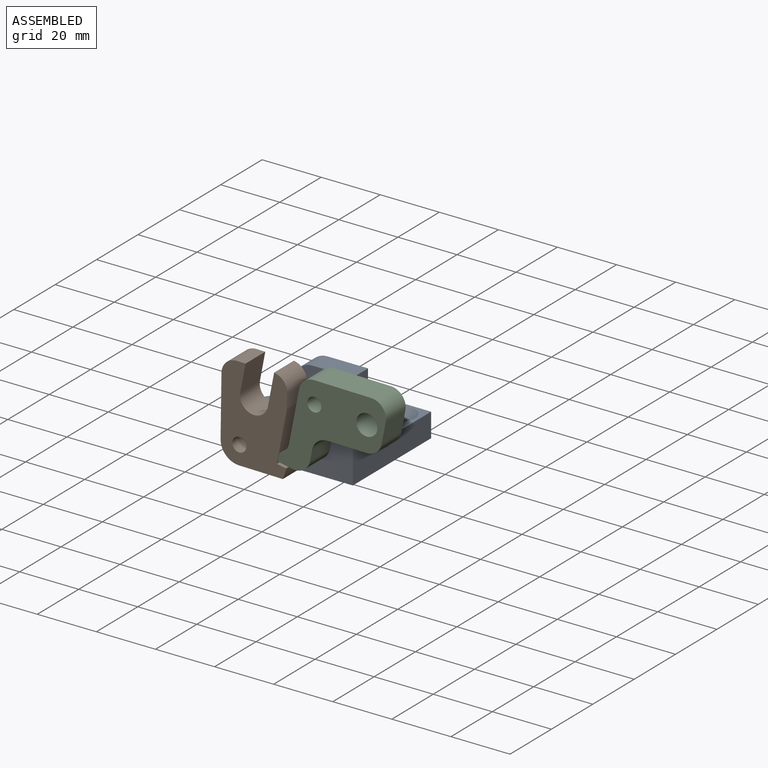
[diagram: assembled view]
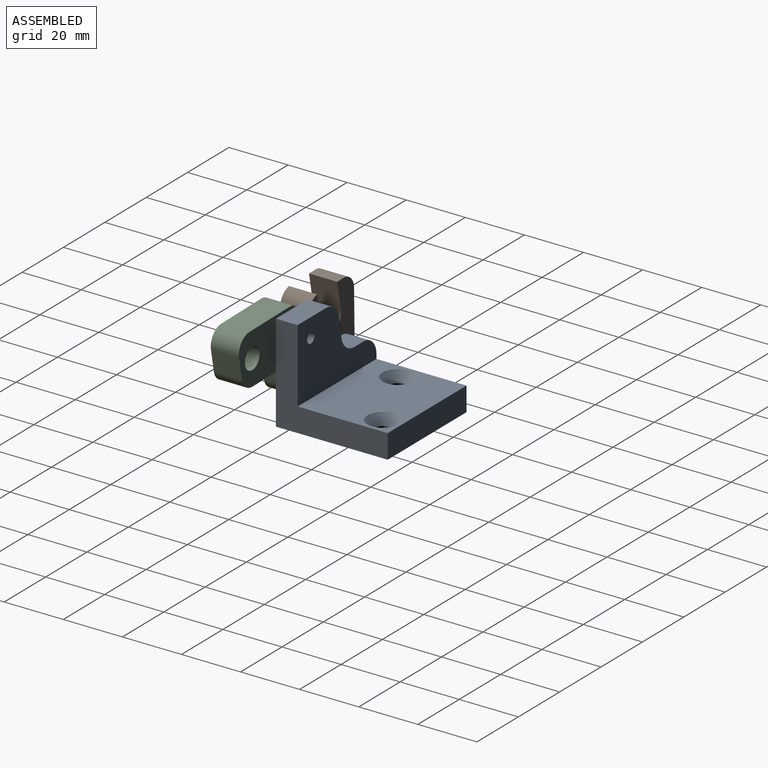
[diagram: assembled view, second angle]
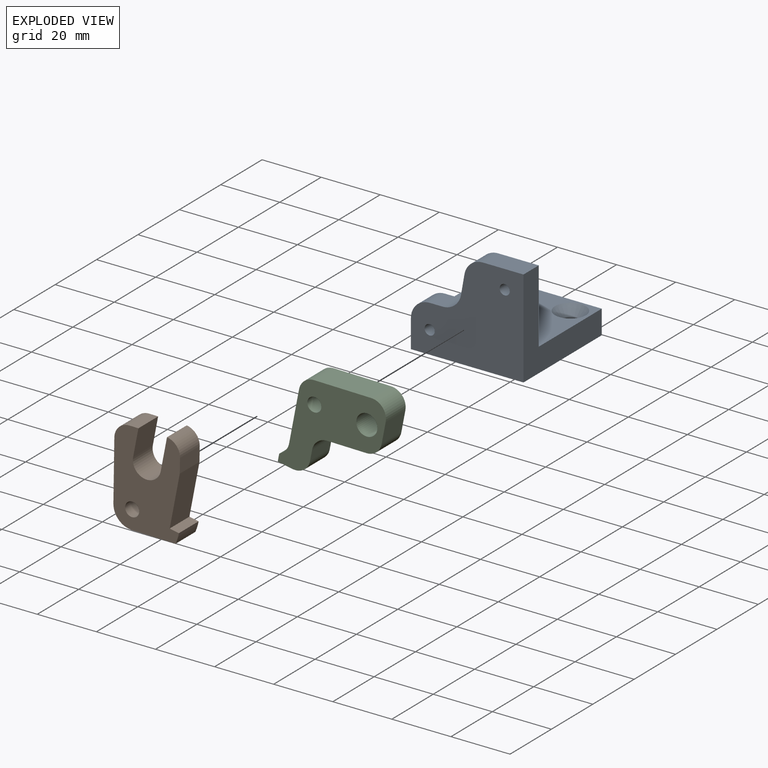
[diagram: exploded view]
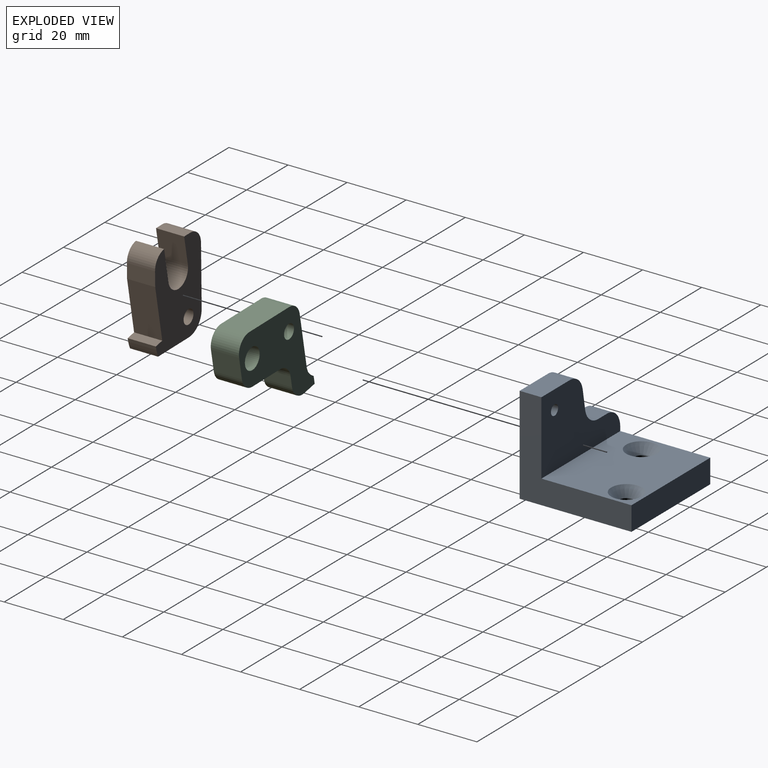
[diagram: exploded view, second angle]
ASSEMBLY  parts=3 mates=4
PART A: 20 faces, bbox 38.1x37.8x33 mm
  f0: plane 38.1x33.02mm, normal (0,-1,0), area 930mm2, adj f1,f2,f3,f4,f12,f14,f15,f16
  f1: plane 37.85x9.53mm, normal (-1,0,0), area 317.9mm2, adj f0,f4,f5,f6,f7,f17
  f2: plane 13.72x7.37mm, normal (0,0,1), area 101.1mm2, adj f0,f3,f5,f19
  f3: plane 37.85x33.02mm, normal (1,0,0), area 491mm2, adj f0,f2,f4,f5,f6,f7
  f4: plane 38.1x37.85mm, normal (0,0,-1), area 1401mm2, adj f0,f1,f3,f7,f8,f10
  f5: plane 38.1x24.89mm, normal (0,1,0), area 629.7mm2, adj f1,f2,f3,f6,f14,f15,f16,f17
  f6: plane 38.1x30.48mm, normal (0,0,1), area 990.1mm2, adj f1,f3,f5,f7,f9,f11
  f7: plane 38.1x8.13mm, normal (0,1,0), area 309.7mm2, adj f1,f3,f4,f6
  f8: cylinder r=2.55mm len=5.11mm, axis (0,0,1), area 81.2mm2, adj f4,f9
  f9: cone r=2.55mm half-angle=41deg, axis (0,0,1), area 99.3mm2, adj f6,f8
  f10: cylinder r=2.55mm len=5.11mm, axis (0,0,1), area 81.2mm2, adj f4,f11
  f11: cone r=2.55mm half-angle=41deg, axis (0,0,1), area 99.3mm2, adj f6,f10
  f12: cylinder r=1.73mm len=6.35mm, axis (0,-1,0), area 68.9mm2, adj f0,f13
  f13: cone r=0mm half-angle=59deg, axis (0,-1,0), area 10.9mm2, adj f12
  f14: cylinder r=1.73mm len=7.37mm, axis (0,-1,0), area 79.9mm2, adj f0,f5
  f15: plane 7.37x4.35mm, normal (0,0,1), area 32mm2, adj f0,f5,f17,f18
  f16: plane 7.37x6.65mm, normal (-0.98,0,0.17), area 49.7mm2, adj f0,f5,f18,f19
  f17: cylinder r=6.35mm len=7.37mm, axis (0,1,0), area 73.5mm2, adj f0,f1,f5,f15
  f18: cylinder r=6.35mm len=7.37mm, axis (0,1,0), area 65.3mm2, adj f0,f5,f15,f16
  f19: cylinder r=6.35mm len=7.37mm, axis (0,-1,0), area 65.3mm2, adj f0,f2,f5,f16
PART B: 16 faces, bbox 22.2x9.5x31.8 mm
  f0: plane 31.75x22.23mm, normal (0,1,0), area 504.1mm2, adj f2,f3,f4,f5,f6,f7,f8,f9
  f1: plane 31.75x22.23mm, normal (0,-1,0), area 504.1mm2, adj f2,f3,f4,f5,f6,f7,f8,f9
  f2: plane 14.82x9.53mm, normal (0,0,-1), area 141.1mm2, adj f0,f1,f10,f13
  f3: plane 20.32x9.53mm, normal (-1,0,0), area 193.5mm2, adj f0,f1,f10,f15
  f4: plane 9.53x4.87mm, normal (1,0,0), area 46.4mm2, adj f0,f1,f11,f14
  f5: plane 9.53x2.99mm, normal (0,0,1), area 28.5mm2, adj f0,f1,f8,f15
  f6: cylinder r=2.39mm len=9.53mm, axis (0,-1,0), area 142.9mm2, adj f0,f1
  f7: plane 10.99x9.53mm, normal (-0.98,0,0.17), area 106.3mm2, adj f0,f1,f9,f14
  f8: plane 9.53x9.33mm, normal (0.98,0,-0.17), area 90.3mm2, adj f0,f1,f5,f9
  f9: cylinder r=4.76mm len=9.53mm, axis (0,-1,0), area 142.5mm2, adj f0,f1,f7,f8
  f10: cylinder r=6.35mm len=9.53mm, axis (0,-1,0), area 95mm2, adj f0,f1,f2,f3
  f11: plane 17.73x9.53mm, normal (0.98,0,-0.17), area 171.5mm2, adj f0,f1,f4,f12
  f12: plane 9.53x3.13mm, normal (0.17,0,0.98), area 30.2mm2, adj f0,f1,f11,f13
  f13: cylinder r=16.12mm len=9.53mm, axis (0,-1,0), area 35.4mm2, adj f0,f1,f2,f12
  f14: cylinder r=5.08mm len=9.53mm, axis (0,-1,0), area 70.3mm2, adj f0,f1,f4,f7
  f15: cylinder r=5.08mm len=9.53mm, axis (0,-1,0), area 76mm2, adj f0,f1,f3,f5
PART C: 18 faces, bbox 36.3x9.5x29.3 mm
  f0: plane 36.27x29.31mm, normal (0,1,0), area 542.1mm2, adj f1,f2,f4,f5,f6,f7,f8,f9
  f1: plane 9.53x5mm, normal (-0.17,0,-0.98), area 48.4mm2, adj f0,f3,f4,f16
  f2: plane 9.53x7.14mm, normal (0.98,0,-0.17), area 69.1mm2, adj f0,f3,f13,f14
  f3: plane 36.27x29.31mm, normal (0,-1,0), area 542.1mm2, adj f1,f2,f4,f5,f6,f7,f8,f9
  f4: plane 9.53x2.5mm, normal (-0.98,0,0.17), area 24.2mm2, adj f0,f1,f3,f6
  f5: plane 17.52x9.53mm, normal (-0.98,0,0.17), area 169.5mm2, adj f0,f3,f12,f17
  f6: plane 9.53x1.22mm, normal (-0.57,0,0.82), area 14.2mm2, adj f0,f3,f4,f17
  f7: cylinder r=2.39mm len=9.53mm, axis (0,-1,0), area 142.9mm2, adj f0,f3
  f8: cylinder r=3.57mm len=9.53mm, axis (0,-1,0), area 213.7mm2, adj f0,f3
  f9: plane 19.34x9.53mm, normal (0,0,1), area 184.3mm2, adj f0,f3,f12,f13
  f10: plane 13.4x9.53mm, normal (0,0,-1), area 127.6mm2, adj f0,f3,f14,f15
  f11: plane 9.53x3.61mm, normal (0.98,0,-0.17), area 35mm2, adj f0,f3,f15,f16
  f12: cylinder r=5.08mm len=9.53mm, axis (0,1,0), area 67.6mm2, adj f0,f3,f5,f9
  f13: cylinder r=5.08mm len=9.53mm, axis (0,1,0), area 84.5mm2, adj f0,f2,f3,f9
  f14: cylinder r=5.08mm len=9.53mm, axis (0,1,0), area 67.6mm2, adj f0,f2,f3,f10
  f15: cylinder r=5.08mm len=9.53mm, axis (0,1,0), area 67.6mm2, adj f0,f3,f10,f11
  f16: cylinder r=5.08mm len=9.53mm, axis (0,1,0), area 76mm2, adj f0,f1,f3,f11
  f17: cylinder r=5.08mm len=9.53mm, axis (0,1,0), area 38mm2, adj f0,f3,f5,f6
PLACE A t=(-27.05,-32.29,-45.83)mm fixed
PLACE B rot(axis=(0,1,0),0.9deg) t=(-27.05,-32.29,-45.83)mm
PLACE C rot(axis=(0,1,0),0.9deg) t=(-27.34,-32.29,-45.44)mm
MATE cylindrical B.f13 <-> A.f12  axis (0,-1,0) through (-27.05,-32.29,-45.83)mm
MATE planar A.f0 <-> C.f0  axis (0,-1,0) through (-10.9,-22.76,-39.67)mm
MATE planar B.f0 <-> A.f0  axis (0,1,0) through (-22.6,-22.76,-38.09)mm
MATE cylindrical C.f7 <-> A.f14  axis (0,-1,0) through (-1.65,-32.29,-26.78)mm
